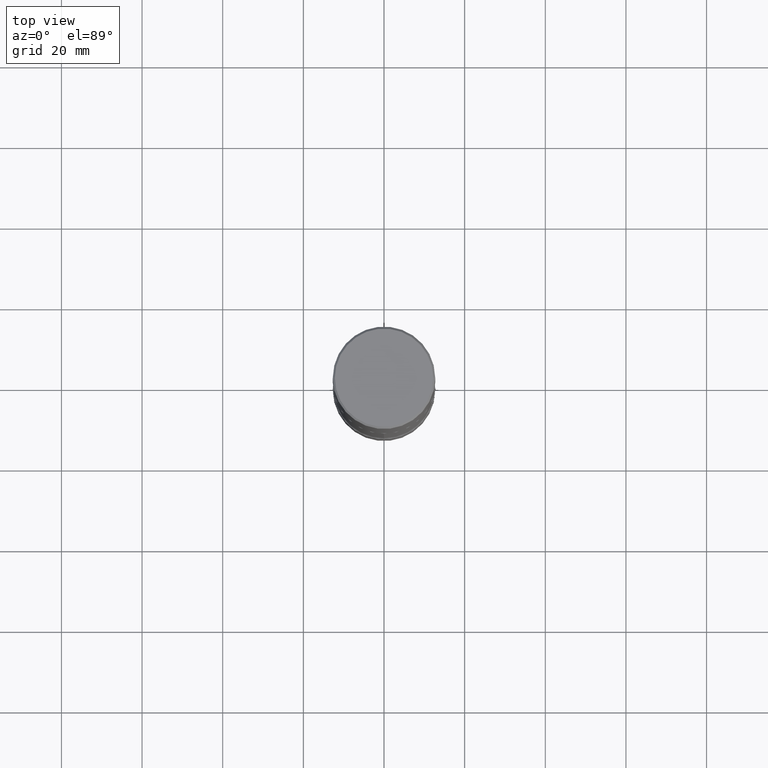
[diagram: clean part render]
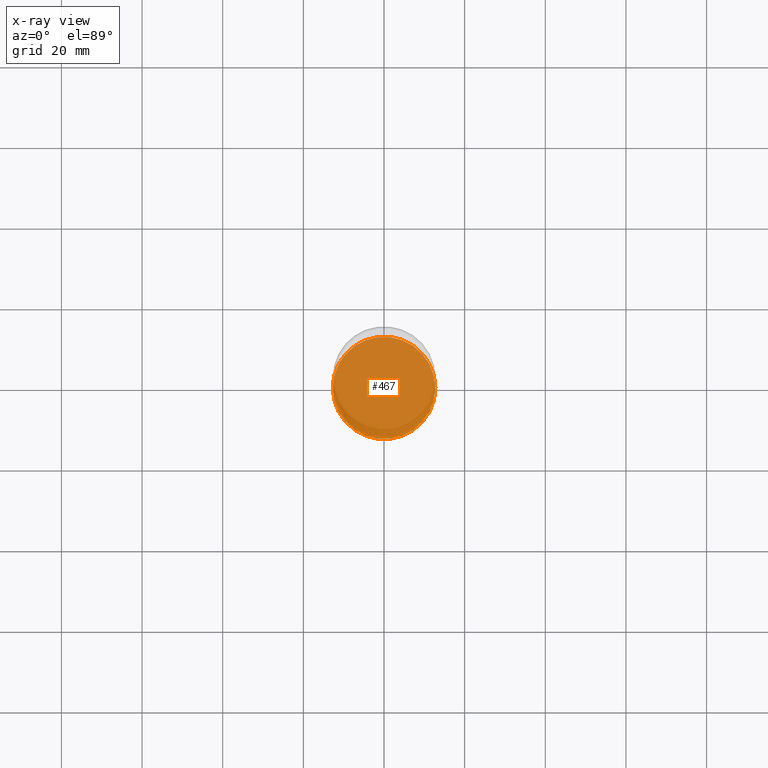
[diagram: x-ray — body ghosted, one internal face saturated and labeled with its STEP entity id]
A machine part, top view, then the same camera in x-ray: the body is ghosted and one INTERNAL B-rep face — a face not visible from any outside direction — is saturated and labeled: STEP entity #467.
In plain terms, the highlighted planar face has unit normal (0, -0, -1).
Its self-contained STEP definition (entity closure, byte-faithful):
#14 = DIRECTION ( 'NONE',  ( -2.445468806185136597E-29, 3.491481338843145583E-15, 1.000000000000000000 ) ) ;
#26 = ORIENTED_EDGE ( 'NONE', *, *, #91, .T. ) ;
#52 = AXIS2_PLACEMENT_3D ( 'NONE', #520, #262, #444 ) ;
#89 = DIRECTION ( 'NONE',  ( 1.000000000000000000, -6.982962677686264344E-15, 0.000000000000000000 ) ) ;
#91 = EDGE_CURVE ( 'NONE', #325, #263, #161, .T. ) ;
#95 = CARTESIAN_POINT ( 'NONE',  ( 1.406144563556453992E-28, -2.007601769834809568E-14, -5.750000000000001776 ) ) ;
#123 = CARTESIAN_POINT ( 'NONE',  ( 0.5000000000000004441, -2.356749903719122903E-14, -5.750000000000001776 ) ) ;
#148 = DIRECTION ( 'NONE',  ( 1.000000000000000000, -6.982962677686264344E-15, 0.000000000000000000 ) ) ;
#161 = CIRCLE ( 'NONE', #350, 0.5000000000000004441 ) ;
#162 = CIRCLE ( 'NONE', #209, 0.5000000000000004441 ) ;
#209 = AXIS2_PLACEMENT_3D ( 'NONE', #95, #269, #89 ) ;
#214 = PLANE ( 'NONE',  #52 ) ;
#220 = FACE_OUTER_BOUND ( 'NONE', #551, .T. ) ;
#262 = DIRECTION ( 'NONE',  ( 2.438088387897960049E-29, -3.491481338843145188E-15, -1.000000000000000000 ) ) ;
#263 = VERTEX_POINT ( 'NONE', #123 ) ;
#269 = DIRECTION ( 'NONE',  ( -2.445468806185136597E-29, 3.491481338843145583E-15, 1.000000000000000000 ) ) ;
#325 = VERTEX_POINT ( 'NONE', #401 ) ;
#350 = AXIS2_PLACEMENT_3D ( 'NONE', #450, #14, #148 ) ;
#401 = CARTESIAN_POINT ( 'NONE',  ( -0.5000000000000005551, -1.826904468896916143E-14, -5.750000000000001776 ) ) ;
#410 = EDGE_CURVE ( 'NONE', #263, #325, #162, .T. ) ;
#444 = DIRECTION ( 'NONE',  ( -1.000000000000000000, 6.982962677686265922E-15, -4.876176775795935793E-29 ) ) ;
#450 = CARTESIAN_POINT ( 'NONE',  ( 1.406144563556453992E-28, -2.007601769834809568E-14, -5.750000000000001776 ) ) ;
#467 = ADVANCED_FACE ( 'NONE', ( #220 ), #214, .F. ) ;
#520 = CARTESIAN_POINT ( 'NONE',  ( 5.286305048364502604E-29, -3.264251846920369505E-14, -5.750000000000000888 ) ) ;
#550 = ORIENTED_EDGE ( 'NONE', *, *, #410, .T. ) ;
#551 = EDGE_LOOP ( 'NONE', ( #550, #26 ) ) ;